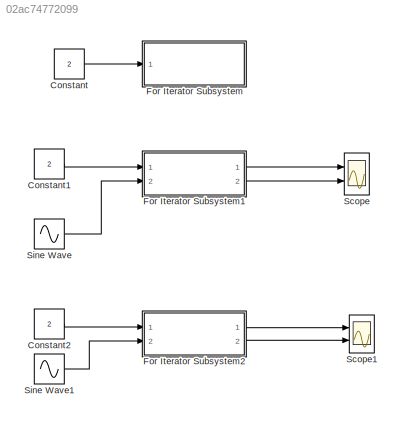
MODEL slx_02ac74772099
KIND model
BLOCK [Constant] Constant
  Value = 2
BLOCK [Constant] Constant1
  Value = 2
BLOCK [Constant] Constant2
  Value = 2
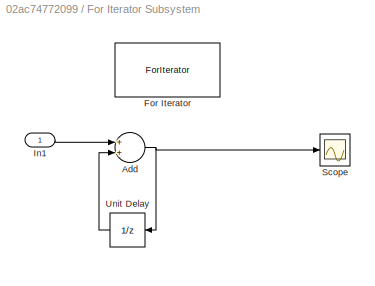
BLOCK [SubSystem] For Iterator Subsystem
  FunctionWithSeparateData = off
  MaskHideContents = off
  MinAlgLoopOccurrences = off
  Opaque = off
  Ports = [1]
  PropExecContextOutsideSubsystem = off
  RTWSystemCode = Auto
  RequestExecContextInheritance = off
  TreatAsAtomicUnit = on
BLOCK [Sum] For Iterator Subsystem/Add
  InputSameDT = off
  OutDataTypeStr = Inherit: Inherit via internal rule
  Ports = [2, 1]
  SaturateOnIntegerOverflow = off
BLOCK [ForIterator] For Iterator Subsystem/For Iterator
  Ports = []
  ShowIterationPort = off
BLOCK [Inport] For Iterator Subsystem/In1
  IconDisplay = Port number
BLOCK [Scope] For Iterator Subsystem/Scope
  DataFormat = StructureWithTime
  Floating = off
  NumInputPorts = 1
  Ports = [1]
  SampleTime = 0
  ShowLegends = off
  YMax = 100
  YMin = -1
  ZoomMode = yonly
BLOCK [UnitDelay] For Iterator Subsystem/Unit Delay
  InputProcessing = Elements as channels (sample based)
  SampleTime = -1
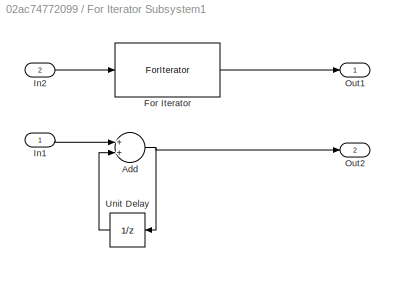
BLOCK [SubSystem] For Iterator Subsystem1
  FunctionWithSeparateData = off
  MaskHideContents = off
  MinAlgLoopOccurrences = off
  Opaque = off
  Ports = [2, 2]
  PropExecContextOutsideSubsystem = off
  RTWSystemCode = Auto
  RequestExecContextInheritance = off
  TreatAsAtomicUnit = on
BLOCK [Sum] For Iterator Subsystem1/Add
  InputSameDT = off
  OutDataTypeStr = Inherit: Inherit via internal rule
  Ports = [2, 1]
  SaturateOnIntegerOverflow = off
BLOCK [ForIterator] For Iterator Subsystem1/For Iterator
  IterationSource = external
  IterationVariableDataType = double
  Ports = [1, 1]
BLOCK [Inport] For Iterator Subsystem1/In1
  IconDisplay = Port number
BLOCK [Inport] For Iterator Subsystem1/In2
  IconDisplay = Port number
  Port = 2
BLOCK [Outport] For Iterator Subsystem1/Out1
  IconDisplay = Port number
BLOCK [Outport] For Iterator Subsystem1/Out2
  IconDisplay = Port number
  Port = 2
BLOCK [UnitDelay] For Iterator Subsystem1/Unit Delay
  InputProcessing = Elements as channels (sample based)
  SampleTime = -1
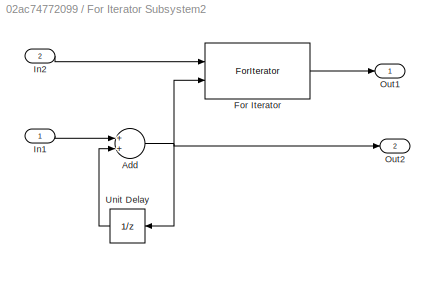
BLOCK [SubSystem] For Iterator Subsystem2
  FunctionWithSeparateData = off
  MaskHideContents = off
  MinAlgLoopOccurrences = off
  Opaque = off
  Ports = [2, 2]
  PropExecContextOutsideSubsystem = off
  RTWSystemCode = Auto
  RequestExecContextInheritance = off
  TreatAsAtomicUnit = on
BLOCK [Sum] For Iterator Subsystem2/Add
  InputSameDT = off
  OutDataTypeStr = Inherit: Inherit via internal rule
  Ports = [2, 1]
  SaturateOnIntegerOverflow = off
BLOCK [ForIterator] For Iterator Subsystem2/For Iterator
  ExternalIncrement = on
  IterationSource = external
  IterationVariableDataType = double
  Ports = [2, 1]
BLOCK [Inport] For Iterator Subsystem2/In1
  IconDisplay = Port number
BLOCK [Inport] For Iterator Subsystem2/In2
  IconDisplay = Port number
  Port = 2
BLOCK [Outport] For Iterator Subsystem2/Out1
  IconDisplay = Port number
BLOCK [Outport] For Iterator Subsystem2/Out2
  IconDisplay = Port number
  Port = 2
BLOCK [UnitDelay] For Iterator Subsystem2/Unit Delay
  InputProcessing = Elements as channels (sample based)
  SampleTime = -1
BLOCK [Scope] Scope
  DataFormat = StructureWithTime
  Floating = off
  NumInputPorts = 2
  Ports = [2]
  SampleTime = 0
  SaveName = ScopeData1
  ShowLegends = off
  YMax = 5~5
  YMin = -5~-5
BLOCK [Scope] Scope1
  DataFormat = StructureWithTime
  Floating = off
  NumInputPorts = 2
  Ports = [2]
  SampleTime = 0
  SaveName = ScopeData2
  ShowLegends = off
  YMax = 5~5
  YMin = -5~-5
BLOCK [Sin] Sine Wave
  Amplitude = 11
  Ports = [0, 1]
  SampleTime = 0
BLOCK [Sin] Sine Wave1
  Amplitude = 11
  Ports = [0, 1]
  SampleTime = 0
LINE Constant1:1 -> For Iterator Subsystem1:1
LINE Constant2:1 -> For Iterator Subsystem2:1
LINE Constant:1 -> For Iterator Subsystem:1
NET For Iterator Subsystem/Add:1 -> For Iterator Subsystem/Scope:1, For Iterator Subsystem/Unit Delay:1
LINE For Iterator Subsystem/In1:1 -> For Iterator Subsystem/Add:1
LINE For Iterator Subsystem/Unit Delay:1 -> For Iterator Subsystem/Add:2
NET For Iterator Subsystem1/Add:1 -> For Iterator Subsystem1/Out2:1, For Iterator Subsystem1/Unit Delay:1
LINE For Iterator Subsystem1/For Iterator:1 -> For Iterator Subsystem1/Out1:1
LINE For Iterator Subsystem1/In1:1 -> For Iterator Subsystem1/Add:1
LINE For Iterator Subsystem1/In2:1 -> For Iterator Subsystem1/For Iterator:1
LINE For Iterator Subsystem1/Unit Delay:1 -> For Iterator Subsystem1/Add:2
LINE For Iterator Subsystem1:1 -> Scope:1
LINE For Iterator Subsystem1:2 -> Scope:2
NET For Iterator Subsystem2/Add:1 -> For Iterator Subsystem2/For Iterator:2, For Iterator Subsystem2/Out2:1, For Iterator Subsystem2/Unit Delay:1
LINE For Iterator Subsystem2/For Iterator:1 -> For Iterator Subsystem2/Out1:1
LINE For Iterator Subsystem2/In1:1 -> For Iterator Subsystem2/Add:1
LINE For Iterator Subsystem2/In2:1 -> For Iterator Subsystem2/For Iterator:1
LINE For Iterator Subsystem2/Unit Delay:1 -> For Iterator Subsystem2/Add:2
LINE For Iterator Subsystem2:1 -> Scope1:1
LINE For Iterator Subsystem2:2 -> Scope1:2
LINE Sine Wave1:1 -> For Iterator Subsystem2:2
LINE Sine Wave:1 -> For Iterator Subsystem1:2
note: NET lines group one-source signal fan-out (src -> all destinations, sorted); 1:1 wires keep LINE
